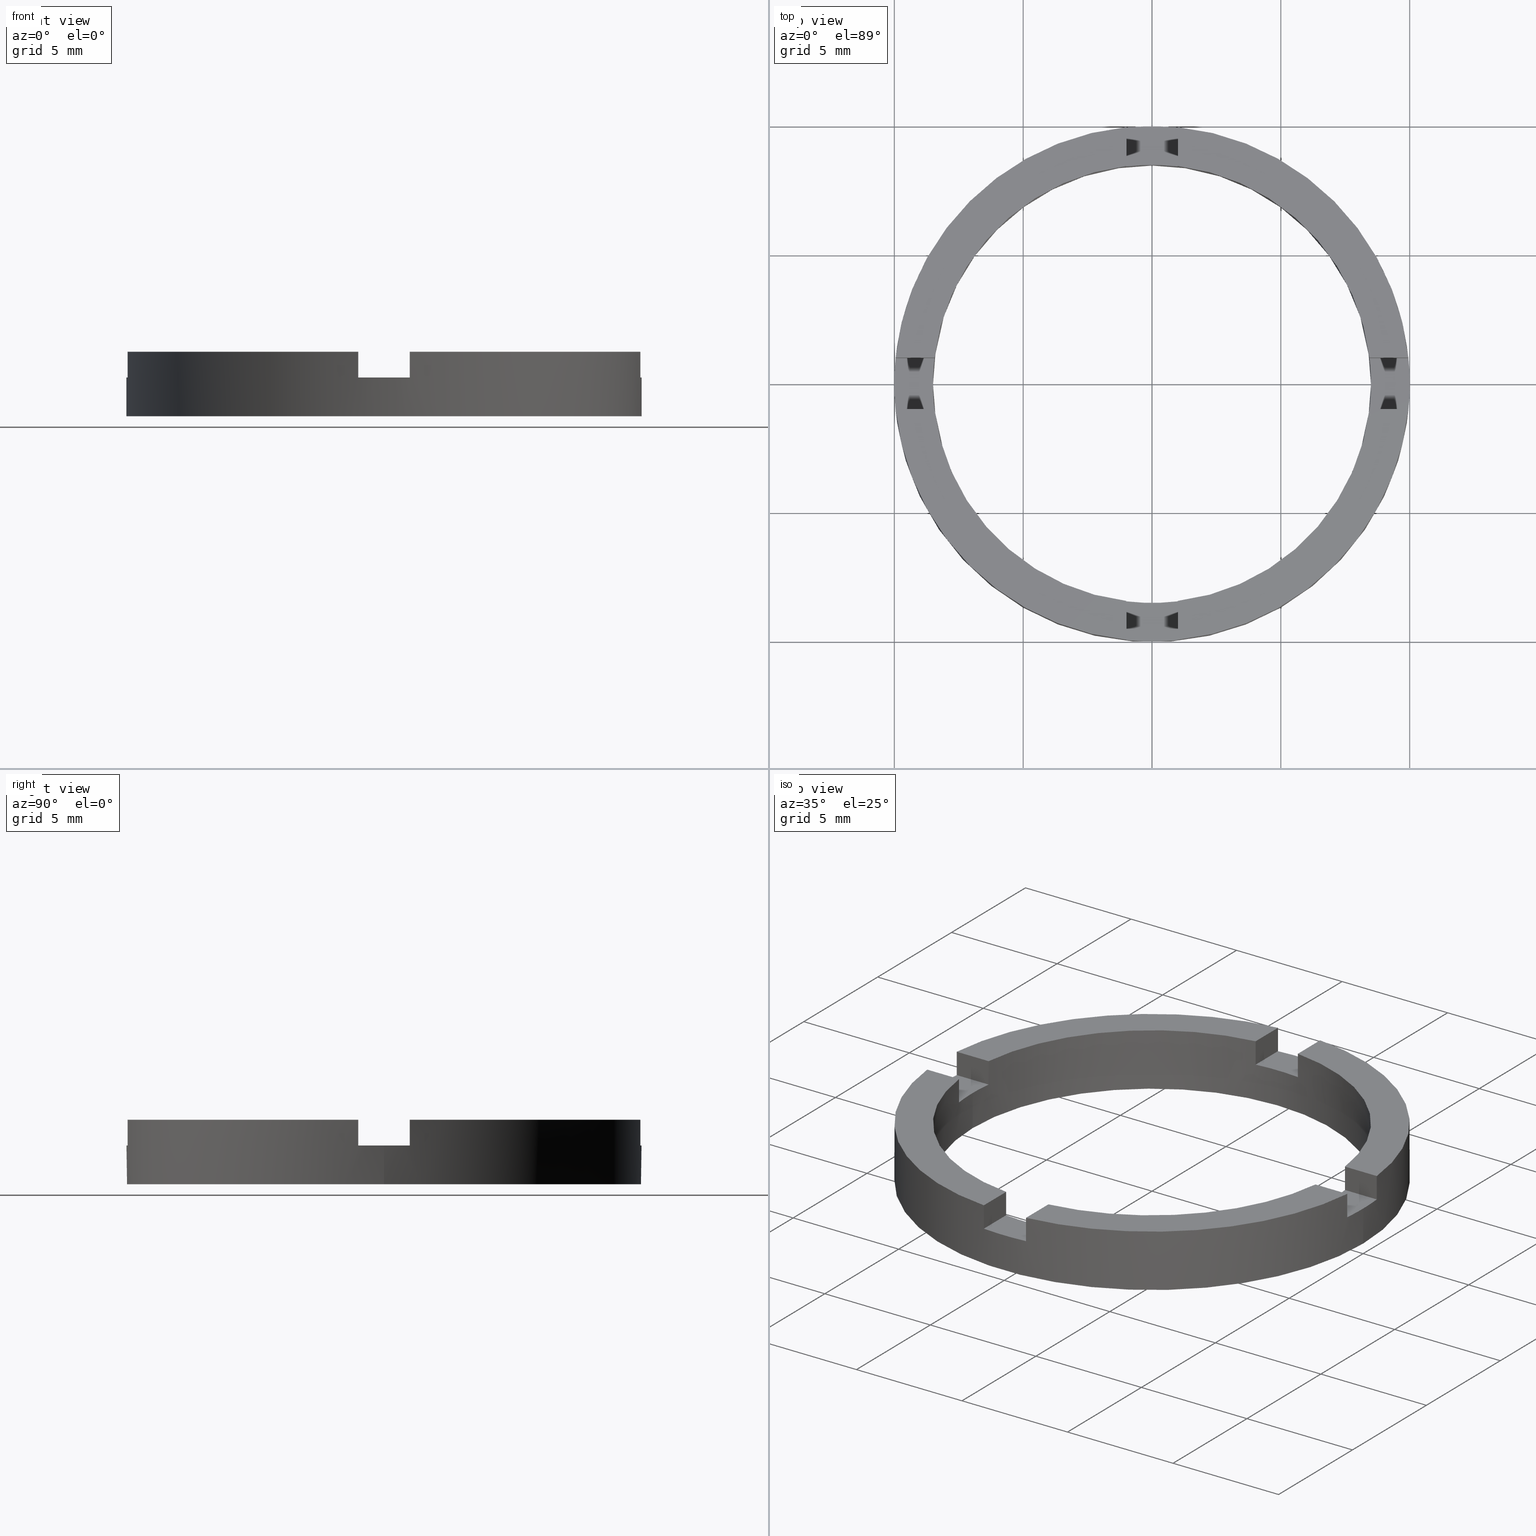
[diagram: canonical four-view strip — front | top / right | iso, engineering-drawing reading convention]
A machine part, canonical four-view strip (front | top / right | iso — engineering-drawing reading convention). The complete STEP part file that produces these views, byte-faithful:
ISO-10303-21;
HEADER;
FILE_DESCRIPTION (( 'STEP AP203' ),
    '1' );
FILE_NAME ('514048.step',
    '2024-12-26T02:32:35',
    ( 'MSI' ),
    ( '' ),
    'SwSTEP 2.0',
    'SolidWorks 2020',
    '' );
FILE_SCHEMA (( 'CONFIG_CONTROL_DESIGN' ));
ENDSEC;

DATA;
#1 = ORIENTED_EDGE ( 'NONE', *, *, #573, .T. ) ;
#2 = ORIENTED_EDGE ( 'NONE', *, *, #240, .F. ) ;
#3 = ORIENTED_EDGE ( 'NONE', *, *, #167, .T. ) ;
#4 = CARTESIAN_POINT ( 'NONE',  ( -9.949874371066195877, 1.000000000000036193, 1.500000000000000000 ) ) ;
#5 = ORIENTED_EDGE ( 'NONE', *, *, #281, .T. ) ;
#6 = CARTESIAN_POINT ( 'NONE',  ( 3.751339516799841397E-15, 0.9999999999999988898, 1.500000000000000000 ) ) ;
#7 = ORIENTED_EDGE ( 'NONE', *, *, #631, .F. ) ;
#8 = ORIENTED_EDGE ( 'NONE', *, *, #330, .T. ) ;
#9 = CARTESIAN_POINT ( 'NONE',  ( 1.000000000000001332, -8.440971508067066864, 2.500000000000000000 ) ) ;
#10 = VERTEX_POINT ( 'NONE', #237 ) ;
#11 = ORIENTED_EDGE ( 'NONE', *, *, #774, .F. ) ;
#12 = ADVANCED_FACE ( 'NONE', ( #147 ), #344, .T. ) ;
#13 = VERTEX_POINT ( 'NONE', #334 ) ;
#14 = ORIENTED_EDGE ( 'NONE', *, *, #306, .T. ) ;
#15 = DIRECTION ( 'NONE',  ( -0.000000000000000000, -0.000000000000000000, 1.000000000000000000 ) ) ;
#16 = ORIENTED_EDGE ( 'NONE', *, *, #313, .F. ) ;
#17 = VERTEX_POINT ( 'NONE', #593 ) ;
#18 = DIRECTION ( 'NONE',  ( 1.000000000000000000, 0.000000000000000000, 0.000000000000000000 ) ) ;
#19 = ORIENTED_EDGE ( 'NONE', *, *, #385, .T. ) ;
#20 = ORIENTED_EDGE ( 'NONE', *, *, #279, .F. ) ;
#21 = DIRECTION ( 'NONE',  ( 1.000000000000000000, -3.729655473350134464E-15, 0.000000000000000000 ) ) ;
#22 = EDGE_LOOP ( 'NONE', ( #775, #647, #259, #397 ) ) ;
#23 = VERTEX_POINT ( 'NONE', #503 ) ;
#24 = AXIS2_PLACEMENT_3D ( 'NONE', #217, #153, #677 ) ;
#25 = EDGE_LOOP ( 'NONE', ( #182, #714, #525, #529 ) ) ;
#26 = VERTEX_POINT ( 'NONE', #732 ) ;
#27 = ADVANCED_FACE ( 'NONE', ( #163 ), #737, .T. ) ;
#28 = ORIENTED_EDGE ( 'NONE', *, *, #465, .T. ) ;
#29 = EDGE_LOOP ( 'NONE', ( #284, #402 ) ) ;
#30 = VERTEX_POINT ( 'NONE', #4 ) ;
#31 = ORIENTED_EDGE ( 'NONE', *, *, #103, .T. ) ;
#32 = CARTESIAN_POINT ( 'NONE',  ( -8.440971508067070417, -0.9999999999999696909, 1.500000000000000000 ) ) ;
#33 = CARTESIAN_POINT ( 'NONE',  ( -0.9999999999999986677, -8.440971508067066864, 1.500000000000000000 ) ) ;
#34 =( LENGTH_UNIT ( ) NAMED_UNIT ( * ) SI_UNIT ( .MILLI., .METRE. ) );
#35 = AXIS2_PLACEMENT_3D ( 'NONE', #664, #601, #311 ) ;
#36 = DIRECTION ( 'NONE',  ( -0.000000000000000000, 0.000000000000000000, 1.000000000000000000 ) ) ;
#37 = EDGE_CURVE ( 'NONE', #282, #461, #416, .T. ) ;
#38 = CARTESIAN_POINT ( 'NONE',  ( -8.440971508067063311, 1.000000000000030642, 2.500000000000000000 ) ) ;
#39 = APPROVAL_ROLE ( '' ) ;
#40 = DIRECTION ( 'NONE',  ( -0.000000000000000000, -0.000000000000000000, 1.000000000000000000 ) ) ;
#41 = DIRECTION ( 'NONE',  ( 0.000000000000000000, 0.000000000000000000, -1.000000000000000000 ) ) ;
#42 = DIRECTION ( 'NONE',  ( 0.000000000000000000, 1.000000000000000000, -0.000000000000000000 ) ) ;
#43 = CARTESIAN_POINT ( 'NONE',  ( 0.000000000000000000, 0.000000000000000000, 0.000000000000000000 ) ) ;
#44 = CARTESIAN_POINT ( 'NONE',  ( 9.949874371066195877, -1.000000000000038192, 1.500000000000000000 ) ) ;
#45 = AXIS2_PLACEMENT_3D ( 'NONE', #99, #741, #599 ) ;
#46 = ADVANCED_FACE ( 'NONE', ( #145 ), #676, .T. ) ;
#47 = DIRECTION ( 'NONE',  ( -0.000000000000000000, 0.000000000000000000, 1.000000000000000000 ) ) ;
#48 = CARTESIAN_POINT ( 'NONE',  ( -3.729655473350139197E-15, -1.000000000000001110, 1.500000000000000000 ) ) ;
#49 = CARTESIAN_POINT ( 'NONE',  ( -0.9999999999999986677, 0.000000000000000000, 1.500000000000000000 ) ) ;
#50 = CARTESIAN_POINT ( 'NONE',  ( 0.000000000000000000, 0.000000000000000000, 2.500000000000000000 ) ) ;
#51 = CC_DESIGN_SECURITY_CLASSIFICATION ( #630, ( #513 ) ) ;
#52 = CARTESIAN_POINT ( 'NONE',  ( -8.500000000000000000, 0.000000000000000000, 2.500000000000000000 ) ) ;
#53 = AXIS2_PLACEMENT_3D ( 'NONE', #104, #36, #437 ) ;
#54 = EDGE_CURVE ( 'NONE', #30, #185, #392, .T. ) ;
#55 = ADVANCED_FACE ( 'NONE', ( #113 ), #241, .T. ) ;
#56 = PLANE ( 'NONE',  #510 ) ;
#57 = EDGE_CURVE ( 'NONE', #23, #10, #432, .T. ) ;
#58 = DIRECTION ( 'NONE',  ( -1.000000000000000000, 0.000000000000000000, 0.000000000000000000 ) ) ;
#59 = EDGE_CURVE ( 'NONE', #23, #487, #641, .T. ) ;
#60 = DIRECTION ( 'NONE',  ( -0.000000000000000000, -0.000000000000000000, -1.000000000000000000 ) ) ;
#61 = CARTESIAN_POINT ( 'NONE',  ( 0.000000000000000000, 0.000000000000000000, 0.000000000000000000 ) ) ;
#62 = AXIS2_PLACEMENT_3D ( 'NONE', #202, #751, #508 ) ;
#63 = DIRECTION ( 'NONE',  ( 0.000000000000000000, 1.000000000000000000, -0.000000000000000000 ) ) ;
#64 = AXIS2_PLACEMENT_3D ( 'NONE', #455, #761, #617 ) ;
#65 = CC_DESIGN_DATE_AND_TIME_ASSIGNMENT ( #391, #767, ( #457 ) ) ;
#66 = CARTESIAN_POINT ( 'NONE',  ( -3.729655473350139197E-15, -1.000000000000001110, 2.500000000000000000 ) ) ;
#67 = CARTESIAN_POINT ( 'NONE',  ( 0.000000000000000000, 0.000000000000000000, 1.500000000000000000 ) ) ;
#68 = PERSON_AND_ORGANIZATION_ROLE ( 'design_owner' ) ;
#69 =( NAMED_UNIT ( * ) PLANE_ANGLE_UNIT ( ) SI_UNIT ( $, .RADIAN. ) );
#70 = PLANE ( 'NONE',  #95 ) ;
#71 = CARTESIAN_POINT ( 'NONE',  ( 8.440971508067063311, -1.000000000000032641, 1.500000000000000000 ) ) ;
#72 = CARTESIAN_POINT ( 'NONE',  ( -10.00000000000000000, 0.000000000000000000, 0.000000000000000000 ) ) ;
#73 = EDGE_CURVE ( 'NONE', #17, #483, #655, .T. ) ;
#74 = CARTESIAN_POINT ( 'NONE',  ( 1.000000000000001332, -8.440971508067066864, 1.500000000000000000 ) ) ;
#75 = DIRECTION ( 'NONE',  ( -0.000000000000000000, -0.000000000000000000, 1.000000000000000000 ) ) ;
#76 = PLANE ( 'NONE',  #24 ) ;
#77 = APPLICATION_CONTEXT ( 'configuration controlled 3d designs of mechanical parts and assemblies' ) ;
#78 = ORIENTED_EDGE ( 'NONE', *, *, #73, .T. ) ;
#79 = EDGE_CURVE ( 'NONE', #642, #17, #690, .T. ) ;
#80 = CARTESIAN_POINT ( 'NONE',  ( 10.00000000000000000, 1.224646799147353256E-15, 0.000000000000000000 ) ) ;
#81 = MANIFOLD_SOLID_BREP ( '�г�-����1', #249 ) ;
#82 = CARTESIAN_POINT ( 'NONE',  ( 10.00000000000000000, 1.224646799147353256E-15, 2.500000000000000000 ) ) ;
#83 = DIRECTION ( 'NONE',  ( 1.000000000000000000, 0.000000000000000000, -0.000000000000000000 ) ) ;
#84 = PLANE ( 'NONE',  #348 ) ;
#85 = ADVANCED_FACE ( 'NONE', ( #418 ), #84, .F. ) ;
#86 = CARTESIAN_POINT ( 'NONE',  ( 10.00000000000000000, 1.224646799147353256E-15, 1.500000000000000000 ) ) ;
#87 = AXIS2_PLACEMENT_3D ( 'NONE', #609, #144, #253 ) ;
#88 = ADVANCED_FACE ( 'NONE', ( #679 ), #70, .T. ) ;
#89 = EDGE_LOOP ( 'NONE', ( #626, #177, #720, #98 ) ) ;
#90 = APPROVAL ( #292, 'δָ��' ) ;
#91 = ORIENTED_EDGE ( 'NONE', *, *, #500, .F. ) ;
#92 = PERSON ( 'δָ��', 'δָ��', 'δָ��', ('δָ��'), ('δָ��'), ('δָ��') ) ;
#93 = CARTESIAN_POINT ( 'NONE',  ( 0.000000000000000000, 0.000000000000000000, 2.500000000000000000 ) ) ;
#94 = ORIENTED_EDGE ( 'NONE', *, *, #700, .F. ) ;
#95 = AXIS2_PLACEMENT_3D ( 'NONE', #581, #294, #492 ) ;
#96 = ORIENTED_EDGE ( 'NONE', *, *, #633, .F. ) ;
#97 = ORIENTED_EDGE ( 'NONE', *, *, #725, .T. ) ;
#98 = ORIENTED_EDGE ( 'NONE', *, *, #774, .T. ) ;
#99 = CARTESIAN_POINT ( 'NONE',  ( 0.000000000000000000, 0.000000000000000000, 1.500000000000000000 ) ) ;
#100 = EDGE_CURVE ( 'NONE', #621, #387, #384, .T. ) ;
#101 = CARTESIAN_POINT ( 'NONE',  ( 8.440971508067070417, 0.9999999999999672484, 1.500000000000000000 ) ) ;
#102 = AXIS2_PLACEMENT_3D ( 'NONE', #238, #411, #557 ) ;
#103 = EDGE_CURVE ( 'NONE', #173, #667, #400, .T. ) ;
#104 = CARTESIAN_POINT ( 'NONE',  ( 0.000000000000000000, 0.000000000000000000, 1.500000000000000000 ) ) ;
#105 = PERSON_AND_ORGANIZATION ( #92, #378 ) ;
#106 = CARTESIAN_POINT ( 'NONE',  ( -3.729655473350139197E-15, -1.000000000000001110, 1.500000000000000000 ) ) ;
#107 = ORIENTED_EDGE ( 'NONE', *, *, #507, .T. ) ;
#108 = VERTEX_POINT ( 'NONE', #371 ) ;
#109 = COORDINATED_UNIVERSAL_TIME_OFFSET ( 8, 0, .AHEAD. ) ;
#110 = AXIS2_PLACEMENT_3D ( 'NONE', #511, #568, #644 ) ;
#111 = DIRECTION ( 'NONE',  ( 1.000000000000000000, -3.729655473350134464E-15, 0.000000000000000000 ) ) ;
#112 = CALENDAR_DATE ( 2024, 26, 12 ) ;
#113 = FACE_OUTER_BOUND ( 'NONE', #89, .T. ) ;
#114 = EDGE_CURVE ( 'NONE', #742, #122, #161, .T. ) ;
#115 = ORIENTED_EDGE ( 'NONE', *, *, #608, .F. ) ;
#116 = VECTOR ( 'NONE', #40, 1000.000000000000000 ) ;
#117 = ORIENTED_EDGE ( 'NONE', *, *, #281, .F. ) ;
#118 = VECTOR ( 'NONE', #324, 1000.000000000000000 ) ;
#119 = DIRECTION ( 'NONE',  ( 0.000000000000000000, 0.000000000000000000, 1.000000000000000000 ) ) ;
#120 = PERSON_AND_ORGANIZATION ( #92, #378 ) ;
#121 = CARTESIAN_POINT ( 'NONE',  ( 9.949874371066195877, -1.000000000000038192, 2.500000000000000000 ) ) ;
#122 = VERTEX_POINT ( 'NONE', #399 ) ;
#123 =( NAMED_UNIT ( * ) SI_UNIT ( $, .STERADIAN. ) SOLID_ANGLE_UNIT ( ) );
#124 = CIRCLE ( 'NONE', #441, 8.500000000000000000 ) ;
#125 = CARTESIAN_POINT ( 'NONE',  ( 3.751339516799841397E-15, 0.9999999999999988898, 1.500000000000000000 ) ) ;
#126 = ORIENTED_EDGE ( 'NONE', *, *, #236, .T. ) ;
#127 = FACE_OUTER_BOUND ( 'NONE', #132, .T. ) ;
#128 = ORIENTED_EDGE ( 'NONE', *, *, #57, .T. ) ;
#129 = COORDINATED_UNIVERSAL_TIME_OFFSET ( 8, 0, .AHEAD. ) ;
#130 = CIRCLE ( 'NONE', #506, 8.500000000000000000 ) ;
#131 = DIRECTION ( 'NONE',  ( -0.000000000000000000, 0.000000000000000000, 1.000000000000000000 ) ) ;
#132 = EDGE_LOOP ( 'NONE', ( #520, #639, #523, #265, #747, #19 ) ) ;
#133 = DIRECTION ( 'NONE',  ( 1.000000000000000000, 0.000000000000000000, 0.000000000000000000 ) ) ;
#134 = VECTOR ( 'NONE', #419, 1000.000000000000000 ) ;
#135 = VERTEX_POINT ( 'NONE', #620 ) ;
#136 = CALENDAR_DATE ( 2024, 26, 12 ) ;
#137 = CIRCLE ( 'NONE', #87, 8.500000000000000000 ) ;
#138 = AXIS2_PLACEMENT_3D ( 'NONE', #50, #296, #586 ) ;
#139 = VECTOR ( 'NONE', #514, 1000.000000000000000 ) ;
#140 = ORIENTED_EDGE ( 'NONE', *, *, #469, .F. ) ;
#141 = PERSON_AND_ORGANIZATION ( #92, #378 ) ;
#142 = LINE ( 'NONE', #623, #405 ) ;
#143 = CALENDAR_DATE ( 2024, 26, 12 ) ;
#144 = DIRECTION ( 'NONE',  ( 0.000000000000000000, 0.000000000000000000, 1.000000000000000000 ) ) ;
#145 = FACE_OUTER_BOUND ( 'NONE', #406, .T. ) ;
#146 = APPROVAL_DATE_TIME ( #363, #90 ) ;
#147 = FACE_OUTER_BOUND ( 'NONE', #549, .T. ) ;
#148 = COORDINATED_UNIVERSAL_TIME_OFFSET ( 8, 0, .AHEAD. ) ;
#149 = DATE_AND_TIME ( #112, #634 ) ;
#150 = ADVANCED_FACE ( 'NONE', ( #151 ), #359, .T. ) ;
#151 = FACE_OUTER_BOUND ( 'NONE', #369, .T. ) ;
#152 = AXIS2_PLACEMENT_3D ( 'NONE', #610, #466, #521 ) ;
#153 = DIRECTION ( 'NONE',  ( 1.000000000000000000, 0.000000000000000000, 0.000000000000000000 ) ) ;
#154 = APPROVAL_STATUS ( 'not_yet_approved' ) ;
#155 = FACE_OUTER_BOUND ( 'NONE', #25, .T. ) ;
#156 = ORIENTED_EDGE ( 'NONE', *, *, #708, .T. ) ;
#157 = LINE ( 'NONE', #674, #434 ) ;
#158 = VERTEX_POINT ( 'NONE', #32 ) ;
#159 = LINE ( 'NONE', #590, #662 ) ;
#160 = DIRECTION ( 'NONE',  ( -0.000000000000000000, 0.000000000000000000, 1.000000000000000000 ) ) ;
#161 = LINE ( 'NONE', #535, #425 ) ;
#162 = CARTESIAN_POINT ( 'NONE',  ( 0.000000000000000000, 0.000000000000000000, 2.500000000000000000 ) ) ;
#163 = FACE_OUTER_BOUND ( 'NONE', #624, .T. ) ;
#164 = CIRCLE ( 'NONE', #651, 10.00000000000000000 ) ;
#165 = CIRCLE ( 'NONE', #64, 8.500000000000000000 ) ;
#166 = AXIS2_PLACEMENT_3D ( 'NONE', #235, #331, #41 ) ;
#167 = EDGE_CURVE ( 'NONE', #10, #135, #420, .T. ) ;
#168 = CIRCLE ( 'NONE', #561, 8.500000000000000000 ) ;
#169 = CIRCLE ( 'NONE', #628, 8.500000000000000000 ) ;
#170 = VECTOR ( 'NONE', #607, 1000.000000000000000 ) ;
#171 = FACE_OUTER_BOUND ( 'NONE', #245, .T. ) ;
#172 = VECTOR ( 'NONE', #63, 1000.000000000000000 ) ;
#173 = VERTEX_POINT ( 'NONE', #764 ) ;
#174 = FACE_BOUND ( 'NONE', #430, .T. ) ;
#175 = AXIS2_PLACEMENT_3D ( 'NONE', #242, #304, #600 ) ;
#176 = DIRECTION ( 'NONE',  ( 1.000000000000000000, 4.440892098500626162E-15, 0.000000000000000000 ) ) ;
#177 = ORIENTED_EDGE ( 'NONE', *, *, #573, .F. ) ;
#178 = LINE ( 'NONE', #33, #477 ) ;
#179 = ORIENTED_EDGE ( 'NONE', *, *, #633, .T. ) ;
#180 = LINE ( 'NONE', #723, #694 ) ;
#181 = DIRECTION ( 'NONE',  ( 1.000000000000000000, 0.000000000000000000, -0.000000000000000000 ) ) ;
#182 = ORIENTED_EDGE ( 'NONE', *, *, #330, .F. ) ;
#183 = CIRCLE ( 'NONE', #602, 8.500000000000000000 ) ;
#184 = VECTOR ( 'NONE', #111, 1000.000000000000000 ) ;
#185 = VERTEX_POINT ( 'NONE', #275 ) ;
#186 = FACE_OUTER_BOUND ( 'NONE', #280, .T. ) ;
#187 = VECTOR ( 'NONE', #295, 1000.000000000000000 ) ;
#188 = CARTESIAN_POINT ( 'NONE',  ( 3.751339516799841397E-15, 0.9999999999999988898, 2.500000000000000000 ) ) ;
#189 = CIRCLE ( 'NONE', #297, 8.500000000000000000 ) ;
#190 = LINE ( 'NONE', #343, #467 ) ;
#191 = PLANE ( 'NONE',  #35 ) ;
#192 = VECTOR ( 'NONE', #603, 1000.000000000000000 ) ;
#193 = FACE_OUTER_BOUND ( 'NONE', #273, .T. ) ;
#194 = PRODUCT ( '514048', '514048', '', ( #278 ) ) ;
#195 = CYLINDRICAL_SURFACE ( 'NONE', #498, 8.500000000000000000 ) ;
#196 = DESIGN_CONTEXT ( 'detailed design', #696, 'design' ) ;
#197 = LINE ( 'NONE', #106, #736 ) ;
#198 = CC_DESIGN_DATE_AND_TIME_ASSIGNMENT ( #395, #618, ( #630 ) ) ;
#199 = CARTESIAN_POINT ( 'NONE',  ( 0.000000000000000000, 0.000000000000000000, 1.500000000000000000 ) ) ;
#200 = LINE ( 'NONE', #71, #474 ) ;
#201 = VERTEX_POINT ( 'NONE', #604 ) ;
#202 = CARTESIAN_POINT ( 'NONE',  ( 0.000000000000000000, 0.000000000000000000, 2.500000000000000000 ) ) ;
#203 = AXIS2_PLACEMENT_3D ( 'NONE', #208, #131, #18 ) ;
#204 = ORIENTED_EDGE ( 'NONE', *, *, #59, .F. ) ;
#205 = EDGE_CURVE ( 'NONE', #274, #285, #164, .T. ) ;
#206 = ADVANCED_FACE ( 'NONE', ( #127 ), #650, .T. ) ;
#207 = ORIENTED_EDGE ( 'NONE', *, *, #289, .F. ) ;
#208 = CARTESIAN_POINT ( 'NONE',  ( 0.000000000000000000, 0.000000000000000000, 1.500000000000000000 ) ) ;
#209 = EDGE_LOOP ( 'NONE', ( #636, #251, #750, #394, #211, #28 ) ) ;
#210 = CARTESIAN_POINT ( 'NONE',  ( 9.949874371066202983, 0.9999999999999615863, 2.500000000000000000 ) ) ;
#211 = ORIENTED_EDGE ( 'NONE', *, *, #752, .T. ) ;
#212 = DIRECTION ( 'NONE',  ( -0.000000000000000000, -0.000000000000000000, -1.000000000000000000 ) ) ;
#213 = ORIENTED_EDGE ( 'NONE', *, *, #700, .T. ) ;
#214 = ORIENTED_EDGE ( 'NONE', *, *, #746, .F. ) ;
#215 = EDGE_CURVE ( 'NONE', #777, #201, #643, .T. ) ;
#216 = ORIENTED_EDGE ( 'NONE', *, *, #782, .T. ) ;
#217 = CARTESIAN_POINT ( 'NONE',  ( 1.000000000000001332, 0.000000000000000000, 1.500000000000000000 ) ) ;
#218 = PERSON_AND_ORGANIZATION_ROLE ( 'creator' ) ;
#219 = ORIENTED_EDGE ( 'NONE', *, *, #100, .T. ) ;
#220 = CARTESIAN_POINT ( 'NONE',  ( 0.000000000000000000, 0.000000000000000000, 2.500000000000000000 ) ) ;
#221 = ORIENTED_EDGE ( 'NONE', *, *, #306, .F. ) ;
#222 = CARTESIAN_POINT ( 'NONE',  ( 0.000000000000000000, 0.000000000000000000, 1.500000000000000000 ) ) ;
#223 = CARTESIAN_POINT ( 'NONE',  ( -0.9999999999999986677, 9.949874371066199430, 1.500000000000000000 ) ) ;
#224 = DIRECTION ( 'NONE',  ( 1.000000000000000000, 0.000000000000000000, -0.000000000000000000 ) ) ;
#225 = AXIS2_PLACEMENT_3D ( 'NONE', #314, #212, #58 ) ;
#226 = CARTESIAN_POINT ( 'NONE',  ( -9.949874371066202983, -0.9999999999999640288, 1.500000000000000000 ) ) ;
#227 = AXIS2_PLACEMENT_3D ( 'NONE', #67, #47, #276 ) ;
#228 = DIRECTION ( 'NONE',  ( -0.000000000000000000, -0.000000000000000000, 1.000000000000000000 ) ) ;
#229 = CARTESIAN_POINT ( 'NONE',  ( 0.000000000000000000, 0.000000000000000000, 0.000000000000000000 ) ) ;
#230 = DIRECTION ( 'NONE',  ( 1.000000000000000000, 0.000000000000000000, 0.000000000000000000 ) ) ;
#231 = CARTESIAN_POINT ( 'NONE',  ( -9.949874371066195877, 1.000000000000036193, 2.500000000000000000 ) ) ;
#232 = DIRECTION ( 'NONE',  ( -0.000000000000000000, -0.000000000000000000, -1.000000000000000000 ) ) ;
#233 = PERSON_AND_ORGANIZATION_ROLE ( 'creator' ) ;
#234 = ADVANCED_FACE ( 'NONE', ( #155 ), #191, .T. ) ;
#235 = CARTESIAN_POINT ( 'NONE',  ( 1.000000000000001332, 0.000000000000000000, 1.500000000000000000 ) ) ;
#236 = EDGE_CURVE ( 'NONE', #135, #487, #130, .T. ) ;
#237 = CARTESIAN_POINT ( 'NONE',  ( 1.000000000000001332, -9.949874371066199430, 1.500000000000000000 ) ) ;
#238 = CARTESIAN_POINT ( 'NONE',  ( 0.000000000000000000, 0.000000000000000000, 2.500000000000000000 ) ) ;
#239 = EDGE_CURVE ( 'NONE', #748, #689, #157, .T. ) ;
#240 = EDGE_CURVE ( 'NONE', #461, #173, #423, .T. ) ;
#241 = PLANE ( 'NONE',  #453 ) ;
#242 = CARTESIAN_POINT ( 'NONE',  ( 0.000000000000000000, 0.000000000000000000, 2.500000000000000000 ) ) ;
#243 = CC_DESIGN_APPROVAL ( #401, ( #457 ) ) ;
#244 = DIRECTION ( 'NONE',  ( 0.000000000000000000, 0.000000000000000000, 1.000000000000000000 ) ) ;
#245 = EDGE_LOOP ( 'NONE', ( #204, #128, #3, #126 ) ) ;
#246 = ORIENTED_EDGE ( 'NONE', *, *, #570, .T. ) ;
#247 = EDGE_LOOP ( 'NONE', ( #368, #745, #550, #542 ) ) ;
#248 = VERTEX_POINT ( 'NONE', #524 ) ;
#249 = CLOSED_SHELL ( 'NONE', ( #565, #46, #234, #55, #12, #755, #309, #716, #611, #778, #517, #429, #150, #85, #206, #27, #446, #88, #763, #252, #326 ) ) ;
#250 = EDGE_LOOP ( 'NONE', ( #94, #342, #531, #179 ) ) ;
#251 = ORIENTED_EDGE ( 'NONE', *, *, #279, .T. ) ;
#252 = ADVANCED_FACE ( 'NONE', ( #685 ), #776, .F. ) ;
#253 = DIRECTION ( 'NONE',  ( 1.000000000000000000, 0.000000000000000000, 0.000000000000000000 ) ) ;
#254 = ORIENTED_EDGE ( 'NONE', *, *, #54, .T. ) ;
#255 = CARTESIAN_POINT ( 'NONE',  ( 8.440971508067063311, -1.000000000000032641, 1.500000000000000000 ) ) ;
#256 = ORIENTED_EDGE ( 'NONE', *, *, #426, .T. ) ;
#257 = ORIENTED_EDGE ( 'NONE', *, *, #354, .F. ) ;
#258 = CC_DESIGN_APPROVAL ( #300, ( #630 ) ) ;
#259 = ORIENTED_EDGE ( 'NONE', *, *, #167, .F. ) ;
#260 = CARTESIAN_POINT ( 'NONE',  ( 1.000000000000001332, 9.949874371066199430, 1.500000000000000000 ) ) ;
#261 = ORIENTED_EDGE ( 'NONE', *, *, #598, .F. ) ;
#262 = DIRECTION ( 'NONE',  ( 0.000000000000000000, 0.000000000000000000, -1.000000000000000000 ) ) ;
#263 = VERTEX_POINT ( 'NONE', #86 ) ;
#264 = ORIENTED_EDGE ( 'NONE', *, *, #719, .F. ) ;
#265 = ORIENTED_EDGE ( 'NONE', *, *, #79, .T. ) ;
#266 = DIRECTION ( 'NONE',  ( 1.000000000000000000, 0.000000000000000000, 0.000000000000000000 ) ) ;
#267 = DIRECTION ( 'NONE',  ( 1.000000000000000000, -1.509903313490213211E-14, 0.000000000000000000 ) ) ;
#268 = VERTEX_POINT ( 'NONE', #231 ) ;
#269 = PERSON_AND_ORGANIZATION_ROLE ( 'classification_officer' ) ;
#270 = DIRECTION ( 'NONE',  ( 1.000000000000000000, 0.000000000000000000, 0.000000000000000000 ) ) ;
#271 = ORIENTED_EDGE ( 'NONE', *, *, #385, .F. ) ;
#272 = CARTESIAN_POINT ( 'NONE',  ( 1.000000000000001332, 0.000000000000000000, 2.500000000000000000 ) ) ;
#273 = EDGE_LOOP ( 'NONE', ( #214, #207, #661, #653 ) ) ;
#274 = VERTEX_POINT ( 'NONE', #80 ) ;
#275 = CARTESIAN_POINT ( 'NONE',  ( -8.440971508067063311, 1.000000000000030642, 1.500000000000000000 ) ) ;
#276 = DIRECTION ( 'NONE',  ( 1.000000000000000000, 0.000000000000000000, 0.000000000000000000 ) ) ;
#277 = ORIENTED_EDGE ( 'NONE', *, *, #614, .F. ) ;
#278 = MECHANICAL_CONTEXT ( 'NONE', #77, 'mechanical' ) ;
#279 = EDGE_CURVE ( 'NONE', #30, #777, #403, .T. ) ;
#280 = EDGE_LOOP ( 'NONE', ( #454, #91, #288, #1, #2, #286, #560, #8, #115, #779, #14, #518 ) ) ;
#281 = EDGE_CURVE ( 'NONE', #158, #522, #379, .T. ) ;
#282 = VERTEX_POINT ( 'NONE', #545 ) ;
#283 = CARTESIAN_POINT ( 'NONE',  ( -8.440971508067070417, -0.9999999999999696909, 1.500000000000000000 ) ) ;
#284 = ORIENTED_EDGE ( 'NONE', *, *, #725, .F. ) ;
#285 = VERTEX_POINT ( 'NONE', #72 ) ;
#286 = ORIENTED_EDGE ( 'NONE', *, *, #37, .F. ) ;
#287 = DIRECTION ( 'NONE',  ( 1.000000000000000000, -3.729655473350134464E-15, 0.000000000000000000 ) ) ;
#288 = ORIENTED_EDGE ( 'NONE', *, *, #313, .T. ) ;
#289 = EDGE_CURVE ( 'NONE', #23, #459, #159, .T. ) ;
#290 = CARTESIAN_POINT ( 'NONE',  ( 0.000000000000000000, 0.000000000000000000, 1.500000000000000000 ) ) ;
#291 = CARTESIAN_POINT ( 'NONE',  ( -0.9999999999999986677, 8.440971508067066864, 1.500000000000000000 ) ) ;
#292 = APPROVAL_STATUS ( 'not_yet_approved' ) ;
#293 = EDGE_CURVE ( 'NONE', #13, #632, #396, .T. ) ;
#294 = DIRECTION ( 'NONE',  ( -0.000000000000000000, 0.000000000000000000, 1.000000000000000000 ) ) ;
#295 = DIRECTION ( 'NONE',  ( -0.000000000000000000, -0.000000000000000000, 1.000000000000000000 ) ) ;
#296 = DIRECTION ( 'NONE',  ( -0.000000000000000000, -0.000000000000000000, -1.000000000000000000 ) ) ;
#297 = AXIS2_PLACEMENT_3D ( 'NONE', #591, #380, #588 ) ;
#298 = DIRECTION ( 'NONE',  ( -0.000000000000000000, -0.000000000000000000, 1.000000000000000000 ) ) ;
#299 = DIRECTION ( 'NONE',  ( -0.000000000000000000, 0.000000000000000000, 1.000000000000000000 ) ) ;
#300 = APPROVAL ( #366, 'δָ��' ) ;
#301 = DIRECTION ( 'NONE',  ( 0.000000000000000000, -0.000000000000000000, -1.000000000000000000 ) ) ;
#302 = EDGE_CURVE ( 'NONE', #387, #527, #428, .T. ) ;
#303 = AXIS2_PLACEMENT_3D ( 'NONE', #43, #481, #548 ) ;
#304 = DIRECTION ( 'NONE',  ( 0.000000000000000000, 0.000000000000000000, 1.000000000000000000 ) ) ;
#305 = DIRECTION ( 'NONE',  ( -0.000000000000000000, -0.000000000000000000, 1.000000000000000000 ) ) ;
#306 = EDGE_CURVE ( 'NONE', #657, #341, #660, .T. ) ;
#307 = PRODUCT_DEFINITION_SHAPE ( 'NONE', 'NONE',  #457 ) ;
#308 = AXIS2_PLACEMENT_3D ( 'NONE', #290, #160, #494 ) ;
#309 = ADVANCED_FACE ( 'NONE', ( #386 ), #389, .T. ) ;
#310 = PLANE ( 'NONE',  #616 ) ;
#311 = DIRECTION ( 'NONE',  ( 1.000000000000000000, 0.000000000000000000, -0.000000000000000000 ) ) ;
#312 = DIRECTION ( 'NONE',  ( -0.000000000000000000, -0.000000000000000000, 1.000000000000000000 ) ) ;
#313 = EDGE_CURVE ( 'NONE', #621, #26, #142, .T. ) ;
#314 = CARTESIAN_POINT ( 'NONE',  ( 0.000000000000000000, 0.000000000000000000, 2.500000000000000000 ) ) ;
#315 = AXIS2_PLACEMENT_3D ( 'NONE', #625, #488, #773 ) ;
#316 = CARTESIAN_POINT ( 'NONE',  ( 3.751339516799841397E-15, 0.9999999999999988898, 1.500000000000000000 ) ) ;
#317 = DIRECTION ( 'NONE',  ( -0.000000000000000000, -0.000000000000000000, 1.000000000000000000 ) ) ;
#318 = CARTESIAN_POINT ( 'NONE',  ( 0.000000000000000000, 0.000000000000000000, 2.500000000000000000 ) ) ;
#319 = APPROVAL_ROLE ( '' ) ;
#320 = DIRECTION ( 'NONE',  ( 0.000000000000000000, 0.000000000000000000, 1.000000000000000000 ) ) ;
#321 = CARTESIAN_POINT ( 'NONE',  ( 0.000000000000000000, 0.000000000000000000, 2.500000000000000000 ) ) ;
#322 = DIRECTION ( 'NONE',  ( 0.000000000000000000, 0.000000000000000000, 1.000000000000000000 ) ) ;
#323 = AXIS2_PLACEMENT_3D ( 'NONE', #574, #580, #532 ) ;
#324 = DIRECTION ( 'NONE',  ( 0.000000000000000000, 1.000000000000000000, -0.000000000000000000 ) ) ;
#325 = CARTESIAN_POINT ( 'NONE',  ( 0.000000000000000000, 0.000000000000000000, 1.500000000000000000 ) ) ;
#326 = ADVANCED_FACE ( 'NONE', ( #649 ), #552, .T. ) ;
#327 = DIRECTION ( 'NONE',  ( 1.000000000000000000, -3.751339516799845342E-15, 0.000000000000000000 ) ) ;
#328 = PERSON_AND_ORGANIZATION_ROLE ( 'design_supplier' ) ;
#329 = CARTESIAN_POINT ( 'NONE',  ( 0.000000000000000000, 0.000000000000000000, 2.500000000000000000 ) ) ;
#330 = EDGE_CURVE ( 'NONE', #13, #536, #124, .T. ) ;
#331 = DIRECTION ( 'NONE',  ( 1.000000000000000000, 0.000000000000000000, 0.000000000000000000 ) ) ;
#332 = DIRECTION ( 'NONE',  ( 0.000000000000000000, 1.000000000000000000, -0.000000000000000000 ) ) ;
#333 = APPLICATION_PROTOCOL_DEFINITION ( 'international standard', 'config_control_design', 1994, #696 ) ;
#334 = CARTESIAN_POINT ( 'NONE',  ( -0.9999999999999986677, 8.440971508067066864, 2.500000000000000000 ) ) ;
#335 = EDGE_CURVE ( 'NONE', #341, #122, #137, .T. ) ;
#336 = DIRECTION ( 'NONE',  ( 0.000000000000000000, 0.000000000000000000, 1.000000000000000000 ) ) ;
#337 = ORIENTED_EDGE ( 'NONE', *, *, #215, .F. ) ;
#338 = CARTESIAN_POINT ( 'NONE',  ( 0.000000000000000000, 0.000000000000000000, 1.500000000000000000 ) ) ;
#339 = CARTESIAN_POINT ( 'NONE',  ( 0.000000000000000000, 0.000000000000000000, 0.000000000000000000 ) ) ;
#340 = AXIS2_PLACEMENT_3D ( 'NONE', #339, #670, #563 ) ;
#341 = VERTEX_POINT ( 'NONE', #361 ) ;
#342 = ORIENTED_EDGE ( 'NONE', *, *, #426, .F. ) ;
#343 = CARTESIAN_POINT ( 'NONE',  ( -10.00000000000000000, 0.000000000000000000, 2.500000000000000000 ) ) ;
#344 = PLANE ( 'NONE',  #770 ) ;
#345 = DIRECTION ( 'NONE',  ( 1.000000000000000000, 0.000000000000000000, 0.000000000000000000 ) ) ;
#346 = CARTESIAN_POINT ( 'NONE',  ( -8.440971508067063311, 1.000000000000030642, 1.500000000000000000 ) ) ;
#347 = DIRECTION ( 'NONE',  ( 1.000000000000000000, 0.000000000000000000, 0.000000000000000000 ) ) ;
#348 = AXIS2_PLACEMENT_3D ( 'NONE', #48, #710, #287 ) ;
#349 = EDGE_CURVE ( 'NONE', #742, #642, #414, .T. ) ;
#350 = CARTESIAN_POINT ( 'NONE',  ( 0.000000000000000000, 0.000000000000000000, 2.500000000000000000 ) ) ;
#351 =( GEOMETRIC_REPRESENTATION_CONTEXT ( 3 ) GLOBAL_UNCERTAINTY_ASSIGNED_CONTEXT ( ( #476 ) ) GLOBAL_UNIT_ASSIGNED_CONTEXT ( ( #34, #69, #123 ) ) REPRESENTATION_CONTEXT ( 'NONE', 'WORKASPACE' ) );
#352 = ORIENTED_EDGE ( 'NONE', *, *, #577, .T. ) ;
#353 = DIRECTION ( 'NONE',  ( 0.000000000000000000, 0.000000000000000000, 1.000000000000000000 ) ) ;
#354 = EDGE_CURVE ( 'NONE', #201, #495, #666, .T. ) ;
#355 = CARTESIAN_POINT ( 'NONE',  ( -0.9999999999999986677, 0.000000000000000000, 1.500000000000000000 ) ) ;
#356 = ORIENTED_EDGE ( 'NONE', *, *, #302, .F. ) ;
#357 = DIRECTION ( 'NONE',  ( 0.000000000000000000, 0.000000000000000000, 1.000000000000000000 ) ) ;
#358 = DIRECTION ( 'NONE',  ( 1.000000000000000000, 0.000000000000000000, 0.000000000000000000 ) ) ;
#359 = PLANE ( 'NONE',  #594 ) ;
#360 = ORIENTED_EDGE ( 'NONE', *, *, #289, .T. ) ;
#361 = CARTESIAN_POINT ( 'NONE',  ( -8.500000000000000000, 0.000000000000000000, 0.000000000000000000 ) ) ;
#362 = DIRECTION ( 'NONE',  ( 1.000000000000000000, -3.729655473350134464E-15, 0.000000000000000000 ) ) ;
#363 = DATE_AND_TIME ( #373, #413 ) ;
#364 = CARTESIAN_POINT ( 'NONE',  ( 1.000000000000001332, 8.440971508067066864, 1.500000000000000000 ) ) ;
#365 = CARTESIAN_POINT ( 'NONE',  ( 9.949874371066202983, 0.9999999999999615863, 1.500000000000000000 ) ) ;
#366 = APPROVAL_STATUS ( 'not_yet_approved' ) ;
#367 = AXIS2_PLACEMENT_3D ( 'NONE', #325, #578, #479 ) ;
#368 = ORIENTED_EDGE ( 'NONE', *, *, #293, .F. ) ;
#369 = EDGE_LOOP ( 'NONE', ( #264, #16, #219, #404 ) ) ;
#370 = LOCAL_TIME ( 10, 32, 35.00000000000000000, #148 ) ;
#371 = CARTESIAN_POINT ( 'NONE',  ( -0.9999999999999986677, -8.440971508067066864, 2.500000000000000000 ) ) ;
#372 = ORIENTED_EDGE ( 'NONE', *, *, #569, .F. ) ;
#373 = CALENDAR_DATE ( 2024, 26, 12 ) ;
#374 = CC_DESIGN_APPROVAL ( #90, ( #513 ) ) ;
#375 = VECTOR ( 'NONE', #471, 1000.000000000000000 ) ;
#376 = CARTESIAN_POINT ( 'NONE',  ( -0.9999999999999986677, 0.000000000000000000, 2.500000000000000000 ) ) ;
#377 = ORIENTED_EDGE ( 'NONE', *, *, #530, .F. ) ;
#378 = ORGANIZATION ( 'δָ��', 'δָ��', '' ) ;
#379 = LINE ( 'NONE', #283, #687 ) ;
#380 = DIRECTION ( 'NONE',  ( 0.000000000000000000, 0.000000000000000000, 1.000000000000000000 ) ) ;
#381 = ORIENTED_EDGE ( 'NONE', *, *, #608, .T. ) ;
#382 = LINE ( 'NONE', #691, #665 ) ;
#383 = DIRECTION ( 'NONE',  ( -3.751339516799845342E-15, -1.000000000000000000, 0.000000000000000000 ) ) ;
#384 = LINE ( 'NONE', #125, #673 ) ;
#385 = EDGE_CURVE ( 'NONE', #263, #387, #409, .T. ) ;
#386 = FACE_OUTER_BOUND ( 'NONE', #541, .T. ) ;
#387 = VERTEX_POINT ( 'NONE', #365 ) ;
#388 = COORDINATED_UNIVERSAL_TIME_OFFSET ( 8, 0, .AHEAD. ) ;
#389 = CYLINDRICAL_SURFACE ( 'NONE', #138, 10.00000000000000000 ) ;
#390 = ORIENTED_EDGE ( 'NONE', *, *, #79, .F. ) ;
#391 = DATE_AND_TIME ( #143, #410 ) ;
#392 = LINE ( 'NONE', #6, #134 ) ;
#393 = DIRECTION ( 'NONE',  ( 1.000000000000000000, 0.000000000000000000, 0.000000000000000000 ) ) ;
#394 = ORIENTED_EDGE ( 'NONE', *, *, #614, .T. ) ;
#395 = DATE_AND_TIME ( #417, #370 ) ;
#396 = LINE ( 'NONE', #376, #118 ) ;
#397 = ORIENTED_EDGE ( 'NONE', *, *, #598, .T. ) ;
#398 = PERSON_AND_ORGANIZATION ( #92, #378 ) ;
#399 = CARTESIAN_POINT ( 'NONE',  ( 8.500000000000000000, 1.040949779275250140E-15, 0.000000000000000000 ) ) ;
#400 = LINE ( 'NONE', #272, #638 ) ;
#401 = APPROVAL ( #154, 'δָ��' ) ;
#402 = ORIENTED_EDGE ( 'NONE', *, *, #205, .F. ) ;
#403 = CIRCLE ( 'NONE', #308, 10.00000000000000000 ) ;
#404 = ORIENTED_EDGE ( 'NONE', *, *, #302, .T. ) ;
#405 = VECTOR ( 'NONE', #298, 1000.000000000000000 ) ;
#406 = EDGE_LOOP ( 'NONE', ( #271, #246, #534, #438, #20, #156, #740, #546, #533, #672, #11, #356 ) ) ;
#407 = DATE_AND_TIME ( #136, #668 ) ;
#408 = EDGE_CURVE ( 'NONE', #654, #632, #412, .T. ) ;
#409 = CIRCLE ( 'NONE', #227, 10.00000000000000000 ) ;
#410 = LOCAL_TIME ( 10, 32, 35.00000000000000000, #388 ) ;
#411 = DIRECTION ( 'NONE',  ( -0.000000000000000000, -0.000000000000000000, -1.000000000000000000 ) ) ;
#412 = LINE ( 'NONE', #223, #671 ) ;
#413 = LOCAL_TIME ( 10, 32, 35.00000000000000000, #109 ) ;
#414 = CIRCLE ( 'NONE', #739, 8.500000000000000000 ) ;
#415 = CARTESIAN_POINT ( 'NONE',  ( 0.000000000000000000, 0.000000000000000000, 1.500000000000000000 ) ) ;
#416 = CIRCLE ( 'NONE', #780, 8.500000000000000000 ) ;
#417 = CALENDAR_DATE ( 2024, 26, 12 ) ;
#418 = FACE_OUTER_BOUND ( 'NONE', #749, .T. ) ;
#419 = DIRECTION ( 'NONE',  ( 1.000000000000000000, -3.751339516799845342E-15, 0.000000000000000000 ) ) ;
#420 = LINE ( 'NONE', #512, #683 ) ;
#421 = ORIENTED_EDGE ( 'NONE', *, *, #504, .T. ) ;
#422 = SHAPE_DEFINITION_REPRESENTATION ( #307, #575 ) ;
#423 = LINE ( 'NONE', #364, #375 ) ;
#424 = CARTESIAN_POINT ( 'NONE',  ( 8.440971508067063311, -1.000000000000032641, 2.500000000000000000 ) ) ;
#425 = VECTOR ( 'NONE', #585, 1000.000000000000000 ) ;
#426 = EDGE_CURVE ( 'NONE', #689, #645, #169, .T. ) ;
#427 = DIRECTION ( 'NONE',  ( 0.000000000000000000, 0.000000000000000000, 1.000000000000000000 ) ) ;
#428 = LINE ( 'NONE', #627, #431 ) ;
#429 = ADVANCED_FACE ( 'NONE', ( #171 ), #688, .T. ) ;
#430 = EDGE_LOOP ( 'NONE', ( #543, #783 ) ) ;
#431 = VECTOR ( 'NONE', #729, 1000.000000000000000 ) ;
#432 = CIRCLE ( 'NONE', #707, 10.00000000000000000 ) ;
#433 = DIRECTION ( 'NONE',  ( -0.000000000000000000, -0.000000000000000000, 1.000000000000000000 ) ) ;
#434 = VECTOR ( 'NONE', #42, 1000.000000000000000 ) ;
#435 = CIRCLE ( 'NONE', #315, 10.00000000000000000 ) ;
#436 = LINE ( 'NONE', #346, #718 ) ;
#437 = DIRECTION ( 'NONE',  ( 1.000000000000000000, 0.000000000000000000, 0.000000000000000000 ) ) ;
#438 = ORIENTED_EDGE ( 'NONE', *, *, #760, .F. ) ;
#439 = CARTESIAN_POINT ( 'NONE',  ( 1.000000000000001332, 0.000000000000000000, 1.500000000000000000 ) ) ;
#440 = CYLINDRICAL_SURFACE ( 'NONE', #225, 8.500000000000000000 ) ;
#441 = AXIS2_PLACEMENT_3D ( 'NONE', #350, #353, #444 ) ;
#442 = LINE ( 'NONE', #260, #473 ) ;
#443 = DIRECTION ( 'NONE',  ( 0.000000000000000000, -0.000000000000000000, -1.000000000000000000 ) ) ;
#444 = DIRECTION ( 'NONE',  ( 1.000000000000000000, 0.000000000000000000, 0.000000000000000000 ) ) ;
#445 = LINE ( 'NONE', #49, #712 ) ;
#446 = ADVANCED_FACE ( 'NONE', ( #458 ), #472, .F. ) ;
#447 = CARTESIAN_POINT ( 'NONE',  ( 0.000000000000000000, 0.000000000000000000, 1.500000000000000000 ) ) ;
#448 = CIRCLE ( 'NONE', #555, 10.00000000000000000 ) ;
#449 = CIRCLE ( 'NONE', #582, 10.00000000000000000 ) ;
#450 = ORIENTED_EDGE ( 'NONE', *, *, #746, .T. ) ;
#451 = CIRCLE ( 'NONE', #758, 10.00000000000000000 ) ;
#452 = DIRECTION ( 'NONE',  ( -3.751339516799845342E-15, -1.000000000000000000, 0.000000000000000000 ) ) ;
#453 = AXIS2_PLACEMENT_3D ( 'NONE', #321, #336, #224 ) ;
#454 = ORIENTED_EDGE ( 'NONE', *, *, #114, .F. ) ;
#455 = CARTESIAN_POINT ( 'NONE',  ( 0.000000000000000000, 0.000000000000000000, 1.500000000000000000 ) ) ;
#456 = CIRCLE ( 'NONE', #62, 10.00000000000000000 ) ;
#457 = PRODUCT_DEFINITION ( 'δ֪', '', #513, #196 ) ;
#458 = FACE_OUTER_BOUND ( 'NONE', #491, .T. ) ;
#459 = VERTEX_POINT ( 'NONE', #704 ) ;
#460 = LINE ( 'NONE', #635, #172 ) ;
#461 = VERTEX_POINT ( 'NONE', #583 ) ;
#462 = LINE ( 'NONE', #656, #721 ) ;
#463 = DIRECTION ( 'NONE',  ( 1.000000000000000000, 0.000000000000000000, 0.000000000000000000 ) ) ;
#464 = CIRCLE ( 'NONE', #45, 8.500000000000000000 ) ;
#465 = EDGE_CURVE ( 'NONE', #657, #185, #165, .T. ) ;
#466 = DIRECTION ( 'NONE',  ( 1.000000000000000000, 0.000000000000000000, 0.000000000000000000 ) ) ;
#467 = VECTOR ( 'NONE', #60, 1000.000000000000000 ) ;
#468 = FACE_OUTER_BOUND ( 'NONE', #247, .T. ) ;
#469 = EDGE_CURVE ( 'NONE', #487, #108, #178, .T. ) ;
#470 = LINE ( 'NONE', #66, #184 ) ;
#471 = DIRECTION ( 'NONE',  ( -0.000000000000000000, -0.000000000000000000, 1.000000000000000000 ) ) ;
#472 = PLANE ( 'NONE',  #323 ) ;
#473 = VECTOR ( 'NONE', #317, 1000.000000000000000 ) ;
#474 = VECTOR ( 'NONE', #606, 1000.000000000000000 ) ;
#475 = DIRECTION ( 'NONE',  ( -0.000000000000000000, 0.000000000000000000, 1.000000000000000000 ) ) ;
#476 = UNCERTAINTY_MEASURE_WITH_UNIT (LENGTH_MEASURE( 1.000000000000000082E-05 ), #34, 'distance_accuracy_value', 'NONE');
#477 = VECTOR ( 'NONE', #612, 1000.000000000000000 ) ;
#478 = ORIENTED_EDGE ( 'NONE', *, *, #631, .T. ) ;
#479 = DIRECTION ( 'NONE',  ( 1.000000000000000000, 0.000000000000000000, 0.000000000000000000 ) ) ;
#480 = ORIENTED_EDGE ( 'NONE', *, *, #114, .T. ) ;
#481 = DIRECTION ( 'NONE',  ( 0.000000000000000000, 0.000000000000000000, 1.000000000000000000 ) ) ;
#482 = CC_DESIGN_PERSON_AND_ORGANIZATION_ASSIGNMENT ( #682, #218, ( #457 ) ) ;
#483 = VERTEX_POINT ( 'NONE', #121 ) ;
#484 = DIRECTION ( 'NONE',  ( 1.000000000000000000, -3.751339516799845342E-15, 0.000000000000000000 ) ) ;
#485 = ORIENTED_EDGE ( 'NONE', *, *, #587, .F. ) ;
#486 = DIRECTION ( 'NONE',  ( -0.000000000000000000, -0.000000000000000000, -1.000000000000000000 ) ) ;
#487 = VERTEX_POINT ( 'NONE', #571 ) ;
#488 = DIRECTION ( 'NONE',  ( 0.000000000000000000, 0.000000000000000000, 1.000000000000000000 ) ) ;
#489 = ORIENTED_EDGE ( 'NONE', *, *, #354, .T. ) ;
#490 = DIRECTION ( 'NONE',  ( 1.000000000000000000, -3.751339516799845342E-15, 0.000000000000000000 ) ) ;
#491 = EDGE_LOOP ( 'NONE', ( #216, #117, #277, #489 ) ) ;
#492 = DIRECTION ( 'NONE',  ( 1.000000000000000000, 0.000000000000000000, 0.000000000000000000 ) ) ;
#493 = ORIENTED_EDGE ( 'NONE', *, *, #73, .F. ) ;
#494 = DIRECTION ( 'NONE',  ( 1.000000000000000000, 0.000000000000000000, 0.000000000000000000 ) ) ;
#495 = VERTEX_POINT ( 'NONE', #765 ) ;
#496 = DIRECTION ( 'NONE',  ( -0.000000000000000000, -0.000000000000000000, -1.000000000000000000 ) ) ;
#497 = ORIENTED_EDGE ( 'NONE', *, *, #708, .F. ) ;
#498 = AXIS2_PLACEMENT_3D ( 'NONE', #162, #496, #547 ) ;
#499 = DIRECTION ( 'NONE',  ( 1.000000000000000000, 0.000000000000000000, 0.000000000000000000 ) ) ;
#500 = EDGE_CURVE ( 'NONE', #621, #742, #168, .T. ) ;
#501 = AXIS2_PLACEMENT_3D ( 'NONE', #220, #320, #358 ) ;
#502 = DIRECTION ( 'NONE',  ( -0.000000000000000000, 0.000000000000000000, 1.000000000000000000 ) ) ;
#503 = CARTESIAN_POINT ( 'NONE',  ( -0.9999999999999986677, -9.949874371066199430, 1.500000000000000000 ) ) ;
#504 = EDGE_CURVE ( 'NONE', #135, #689, #734, .T. ) ;
#505 = CARTESIAN_POINT ( 'NONE',  ( -0.9999999999999986677, 9.949874371066199430, 2.500000000000000000 ) ) ;
#506 = AXIS2_PLACEMENT_3D ( 'NONE', #199, #443, #347 ) ;
#507 = EDGE_CURVE ( 'NONE', #642, #645, #200, .T. ) ;
#508 = DIRECTION ( 'NONE',  ( 1.000000000000000000, 0.000000000000000000, 0.000000000000000000 ) ) ;
#509 = DIRECTION ( 'NONE',  ( 1.000000000000000000, 0.000000000000000000, 0.000000000000000000 ) ) ;
#510 = AXIS2_PLACEMENT_3D ( 'NONE', #93, #244, #181 ) ;
#511 = CARTESIAN_POINT ( 'NONE',  ( 0.000000000000000000, 0.000000000000000000, 0.000000000000000000 ) ) ;
#512 = CARTESIAN_POINT ( 'NONE',  ( 1.000000000000001332, 0.000000000000000000, 1.500000000000000000 ) ) ;
#513 = PRODUCT_DEFINITION_FORMATION_WITH_SPECIFIED_SOURCE ( '�κ�', '', #194, .NOT_KNOWN. ) ;
#514 = DIRECTION ( 'NONE',  ( -0.000000000000000000, -0.000000000000000000, 1.000000000000000000 ) ) ;
#515 = CARTESIAN_POINT ( 'NONE',  ( -10.00000000000000000, 0.000000000000000000, 1.500000000000000000 ) ) ;
#516 = CC_DESIGN_PERSON_AND_ORGANIZATION_ASSIGNMENT ( #675, #269, ( #630 ) ) ;
#517 = ADVANCED_FACE ( 'NONE', ( #724 ), #76, .F. ) ;
#518 = ORIENTED_EDGE ( 'NONE', *, *, #544, .F. ) ;
#519 = CARTESIAN_POINT ( 'NONE',  ( 0.000000000000000000, 0.000000000000000000, 2.500000000000000000 ) ) ;
#520 = ORIENTED_EDGE ( 'NONE', *, *, #100, .F. ) ;
#521 = DIRECTION ( 'NONE',  ( 0.000000000000000000, 0.000000000000000000, -1.000000000000000000 ) ) ;
#522 = VERTEX_POINT ( 'NONE', #754 ) ;
#523 = ORIENTED_EDGE ( 'NONE', *, *, #349, .T. ) ;
#524 = CARTESIAN_POINT ( 'NONE',  ( 1.000000000000001332, 9.949874371066199430, 1.500000000000000000 ) ) ;
#525 = ORIENTED_EDGE ( 'NONE', *, *, #539, .T. ) ;
#526 = DIRECTION ( 'NONE',  ( 0.000000000000000000, -0.000000000000000000, -1.000000000000000000 ) ) ;
#527 = VERTEX_POINT ( 'NONE', #210 ) ;
#528 = ORIENTED_EDGE ( 'NONE', *, *, #595, .T. ) ;
#529 = ORIENTED_EDGE ( 'NONE', *, *, #569, .T. ) ;
#530 = EDGE_CURVE ( 'NONE', #248, #667, #442, .T. ) ;
#531 = ORIENTED_EDGE ( 'NONE', *, *, #239, .F. ) ;
#532 = DIRECTION ( 'NONE',  ( 1.000000000000000000, -3.729655473350134464E-15, 0.000000000000000000 ) ) ;
#533 = ORIENTED_EDGE ( 'NONE', *, *, #595, .F. ) ;
#534 = ORIENTED_EDGE ( 'NONE', *, *, #205, .T. ) ;
#535 = CARTESIAN_POINT ( 'NONE',  ( 8.500000000000000000, 1.040949779275250140E-15, 2.500000000000000000 ) ) ;
#536 = VERTEX_POINT ( 'NONE', #38 ) ;
#537 = ORIENTED_EDGE ( 'NONE', *, *, #756, .F. ) ;
#538 = DIRECTION ( 'NONE',  ( 0.000000000000000000, 0.000000000000000000, 1.000000000000000000 ) ) ;
#539 = EDGE_CURVE ( 'NONE', #632, #268, #449, .T. ) ;
#540 = CARTESIAN_POINT ( 'NONE',  ( 0.000000000000000000, 0.000000000000000000, 1.500000000000000000 ) ) ;
#541 = EDGE_LOOP ( 'NONE', ( #622, #619, #78, #96, #261, #558, #360, #717, #257, #337, #562, #97 ) ) ;
#542 = ORIENTED_EDGE ( 'NONE', *, *, #408, .T. ) ;
#543 = ORIENTED_EDGE ( 'NONE', *, *, #335, .T. ) ;
#544 = EDGE_CURVE ( 'NONE', #122, #341, #183, .T. ) ;
#545 = CARTESIAN_POINT ( 'NONE',  ( -0.9999999999999986677, 8.440971508067066864, 1.500000000000000000 ) ) ;
#546 = ORIENTED_EDGE ( 'NONE', *, *, #408, .F. ) ;
#547 = DIRECTION ( 'NONE',  ( -1.000000000000000000, 0.000000000000000000, 0.000000000000000000 ) ) ;
#548 = DIRECTION ( 'NONE',  ( 1.000000000000000000, 0.000000000000000000, 0.000000000000000000 ) ) ;
#549 = EDGE_LOOP ( 'NONE', ( #605, #352, #450, #537 ) ) ;
#550 = ORIENTED_EDGE ( 'NONE', *, *, #587, .T. ) ;
#551 = ORIENTED_EDGE ( 'NONE', *, *, #507, .F. ) ;
#552 = PLANE ( 'NONE',  #768 ) ;
#553 = ORIENTED_EDGE ( 'NONE', *, *, #37, .T. ) ;
#554 = EDGE_LOOP ( 'NONE', ( #485, #553, #478, #528 ) ) ;
#555 = AXIS2_PLACEMENT_3D ( 'NONE', #415, #502, #499 ) ;
#556 = ORIENTED_EDGE ( 'NONE', *, *, #240, .T. ) ;
#557 = DIRECTION ( 'NONE',  ( -1.000000000000000000, 0.000000000000000000, 0.000000000000000000 ) ) ;
#558 = ORIENTED_EDGE ( 'NONE', *, *, #57, .F. ) ;
#559 = CARTESIAN_POINT ( 'NONE',  ( -0.9999999999999986677, 9.949874371066199430, 1.500000000000000000 ) ) ;
#560 = ORIENTED_EDGE ( 'NONE', *, *, #566, .T. ) ;
#561 = AXIS2_PLACEMENT_3D ( 'NONE', #615, #766, #267 ) ;
#562 = ORIENTED_EDGE ( 'NONE', *, *, #760, .T. ) ;
#563 = DIRECTION ( 'NONE',  ( 1.000000000000000000, 0.000000000000000000, 0.000000000000000000 ) ) ;
#564 = PLANE ( 'NONE',  #110 ) ;
#565 = ADVANCED_FACE ( 'NONE', ( #726 ), #195, .F. ) ;
#566 = EDGE_CURVE ( 'NONE', #282, #13, #735, .T. ) ;
#567 = DIRECTION ( 'NONE',  ( 0.000000000000000000, 1.000000000000000000, -0.000000000000000000 ) ) ;
#568 = DIRECTION ( 'NONE',  ( 0.000000000000000000, 0.000000000000000000, 1.000000000000000000 ) ) ;
#569 = EDGE_CURVE ( 'NONE', #268, #536, #180, .T. ) ;
#570 = EDGE_CURVE ( 'NONE', #263, #274, #715, .T. ) ;
#571 = CARTESIAN_POINT ( 'NONE',  ( -0.9999999999999986677, -8.440971508067066864, 1.500000000000000000 ) ) ;
#572 = CARTESIAN_POINT ( 'NONE',  ( -8.500000000000000000, 0.000000000000000000, 1.500000000000000000 ) ) ;
#573 = EDGE_CURVE ( 'NONE', #26, #173, #189, .T. ) ;
#574 = CARTESIAN_POINT ( 'NONE',  ( -3.729655473350139197E-15, -1.000000000000001110, 1.500000000000000000 ) ) ;
#575 = ADVANCED_BREP_SHAPE_REPRESENTATION ( '514048', ( #81, #303 ), #351 ) ;
#576 = PLANE ( 'NONE',  #152 ) ;
#577 = EDGE_CURVE ( 'NONE', #495, #459, #435, .T. ) ;
#578 = DIRECTION ( 'NONE',  ( -0.000000000000000000, 0.000000000000000000, 1.000000000000000000 ) ) ;
#579 = DIRECTION ( 'NONE',  ( 1.000000000000000000, 0.000000000000000000, 0.000000000000000000 ) ) ;
#580 = DIRECTION ( 'NONE',  ( -3.729655473350134464E-15, -1.000000000000000000, 0.000000000000000000 ) ) ;
#581 = CARTESIAN_POINT ( 'NONE',  ( 0.000000000000000000, 0.000000000000000000, 1.500000000000000000 ) ) ;
#582 = AXIS2_PLACEMENT_3D ( 'NONE', #318, #357, #133 ) ;
#583 = CARTESIAN_POINT ( 'NONE',  ( 1.000000000000001332, 8.440971508067066864, 1.500000000000000000 ) ) ;
#584 = CC_DESIGN_PERSON_AND_ORGANIZATION_ASSIGNMENT ( #659, #328, ( #513 ) ) ;
#585 = DIRECTION ( 'NONE',  ( -0.000000000000000000, -0.000000000000000000, -1.000000000000000000 ) ) ;
#586 = DIRECTION ( 'NONE',  ( -1.000000000000000000, 0.000000000000000000, 0.000000000000000000 ) ) ;
#587 = EDGE_CURVE ( 'NONE', #282, #654, #445, .T. ) ;
#588 = DIRECTION ( 'NONE',  ( 1.000000000000000000, 0.000000000000000000, 0.000000000000000000 ) ) ;
#589 = APPROVAL_ROLE ( '' ) ;
#590 = CARTESIAN_POINT ( 'NONE',  ( -0.9999999999999986677, -9.949874371066199430, 1.500000000000000000 ) ) ;
#591 = CARTESIAN_POINT ( 'NONE',  ( 0.000000000000000000, 0.000000000000000000, 2.500000000000000000 ) ) ;
#592 = APPLICATION_PROTOCOL_DEFINITION ( 'international standard', 'config_control_design', 1994, #77 ) ;
#593 = CARTESIAN_POINT ( 'NONE',  ( 9.949874371066195877, -1.000000000000038192, 1.500000000000000000 ) ) ;
#594 = AXIS2_PLACEMENT_3D ( 'NONE', #316, #452, #759 ) ;
#595 = EDGE_CURVE ( 'NONE', #248, #654, #451, .T. ) ;
#596 = DIRECTION ( 'NONE',  ( -0.000000000000000000, 0.000000000000000000, 1.000000000000000000 ) ) ;
#597 = CARTESIAN_POINT ( 'NONE',  ( 8.500000000000000000, 1.040949779275250140E-15, 1.500000000000000000 ) ) ;
#598 = EDGE_CURVE ( 'NONE', #10, #748, #730, .T. ) ;
#599 = DIRECTION ( 'NONE',  ( 1.000000000000000000, 1.243449787580175483E-14, 0.000000000000000000 ) ) ;
#600 = DIRECTION ( 'NONE',  ( 1.000000000000000000, 0.000000000000000000, 0.000000000000000000 ) ) ;
#601 = DIRECTION ( 'NONE',  ( 0.000000000000000000, 0.000000000000000000, 1.000000000000000000 ) ) ;
#602 = AXIS2_PLACEMENT_3D ( 'NONE', #229, #538, #393 ) ;
#603 = DIRECTION ( 'NONE',  ( 1.000000000000000000, -3.751339516799845342E-15, 0.000000000000000000 ) ) ;
#604 = CARTESIAN_POINT ( 'NONE',  ( -9.949874371066202983, -0.9999999999999640288, 1.500000000000000000 ) ) ;
#605 = ORIENTED_EDGE ( 'NONE', *, *, #782, .F. ) ;
#606 = DIRECTION ( 'NONE',  ( -0.000000000000000000, -0.000000000000000000, 1.000000000000000000 ) ) ;
#607 = DIRECTION ( 'NONE',  ( 0.000000000000000000, 1.000000000000000000, -0.000000000000000000 ) ) ;
#608 = EDGE_CURVE ( 'NONE', #185, #536, #436, .T. ) ;
#609 = CARTESIAN_POINT ( 'NONE',  ( 0.000000000000000000, 0.000000000000000000, 0.000000000000000000 ) ) ;
#610 = CARTESIAN_POINT ( 'NONE',  ( -0.9999999999999986677, 0.000000000000000000, 1.500000000000000000 ) ) ;
#611 = ADVANCED_FACE ( 'NONE', ( #698, #174 ), #564, .F. ) ;
#612 = DIRECTION ( 'NONE',  ( -0.000000000000000000, -0.000000000000000000, 1.000000000000000000 ) ) ;
#613 = AXIS2_PLACEMENT_3D ( 'NONE', #781, #383, #490 ) ;
#614 = EDGE_CURVE ( 'NONE', #201, #158, #197, .T. ) ;
#615 = CARTESIAN_POINT ( 'NONE',  ( 0.000000000000000000, 0.000000000000000000, 1.500000000000000000 ) ) ;
#616 = AXIS2_PLACEMENT_3D ( 'NONE', #355, #270, #262 ) ;
#617 = DIRECTION ( 'NONE',  ( 1.000000000000000000, 0.000000000000000000, 0.000000000000000000 ) ) ;
#618 = DATE_TIME_ROLE ( 'classification_date' ) ;
#619 = ORIENTED_EDGE ( 'NONE', *, *, #652, .F. ) ;
#620 = CARTESIAN_POINT ( 'NONE',  ( 1.000000000000001554, -8.440971508067068640, 1.500000000000000000 ) ) ;
#621 = VERTEX_POINT ( 'NONE', #101 ) ;
#622 = ORIENTED_EDGE ( 'NONE', *, *, #570, .F. ) ;
#623 = CARTESIAN_POINT ( 'NONE',  ( 8.440971508067070417, 0.9999999999999672484, 1.500000000000000000 ) ) ;
#624 = EDGE_LOOP ( 'NONE', ( #372, #497, #254, #381 ) ) ;
#625 = CARTESIAN_POINT ( 'NONE',  ( 0.000000000000000000, 0.000000000000000000, 2.500000000000000000 ) ) ;
#626 = ORIENTED_EDGE ( 'NONE', *, *, #103, .F. ) ;
#627 = CARTESIAN_POINT ( 'NONE',  ( 9.949874371066202983, 0.9999999999999615863, 1.500000000000000000 ) ) ;
#628 = AXIS2_PLACEMENT_3D ( 'NONE', #519, #322, #463 ) ;
#629 = COORDINATED_UNIVERSAL_TIME_OFFSET ( 8, 0, .AHEAD. ) ;
#630 = SECURITY_CLASSIFICATION ( '', '', #731 ) ;
#631 = EDGE_CURVE ( 'NONE', #461, #248, #722, .T. ) ;
#632 = VERTEX_POINT ( 'NONE', #505 ) ;
#633 = EDGE_CURVE ( 'NONE', #748, #483, #456, .T. ) ;
#634 = LOCAL_TIME ( 10, 32, 35.00000000000000000, #129 ) ;
#635 = CARTESIAN_POINT ( 'NONE',  ( -0.9999999999999986677, 0.000000000000000000, 2.500000000000000000 ) ) ;
#636 = ORIENTED_EDGE ( 'NONE', *, *, #54, .F. ) ;
#637 = APPROVAL_DATE_TIME ( #407, #401 ) ;
#638 = VECTOR ( 'NONE', #769, 1000.000000000000000 ) ;
#639 = ORIENTED_EDGE ( 'NONE', *, *, #500, .T. ) ;
#640 = APPROVAL_DATE_TIME ( #149, #300 ) ;
#641 = LINE ( 'NONE', #699, #669 ) ;
#642 = VERTEX_POINT ( 'NONE', #255 ) ;
#643 = CIRCLE ( 'NONE', #203, 10.00000000000000000 ) ;
#644 = DIRECTION ( 'NONE',  ( 1.000000000000000000, 0.000000000000000000, -0.000000000000000000 ) ) ;
#645 = VERTEX_POINT ( 'NONE', #424 ) ;
#646 = APPROVAL_PERSON_ORGANIZATION ( #648, #90, #589 ) ;
#647 = ORIENTED_EDGE ( 'NONE', *, *, #504, .F. ) ;
#648 = PERSON_AND_ORGANIZATION ( #92, #378 ) ;
#649 = FACE_OUTER_BOUND ( 'NONE', #554, .T. ) ;
#650 = PLANE ( 'NONE',  #53 ) ;
#651 = AXIS2_PLACEMENT_3D ( 'NONE', #61, #119, #266 ) ;
#652 = EDGE_CURVE ( 'NONE', #17, #263, #448, .T. ) ;
#653 = ORIENTED_EDGE ( 'NONE', *, *, #469, .T. ) ;
#654 = VERTEX_POINT ( 'NONE', #559 ) ;
#655 = LINE ( 'NONE', #44, #116 ) ;
#656 = CARTESIAN_POINT ( 'NONE',  ( -9.949874371066195877, 1.000000000000036193, 1.500000000000000000 ) ) ;
#657 = VERTEX_POINT ( 'NONE', #572 ) ;
#658 = EDGE_LOOP ( 'NONE', ( #702, #480, #663, #221, #705, #5, #681, #140, #738, #421, #256, #551 ) ) ;
#659 = PERSON_AND_ORGANIZATION ( #92, #378 ) ;
#660 = LINE ( 'NONE', #52, #692 ) ;
#661 = ORIENTED_EDGE ( 'NONE', *, *, #59, .T. ) ;
#662 = VECTOR ( 'NONE', #228, 1000.000000000000000 ) ;
#663 = ORIENTED_EDGE ( 'NONE', *, *, #335, .F. ) ;
#664 = CARTESIAN_POINT ( 'NONE',  ( 0.000000000000000000, 0.000000000000000000, 2.500000000000000000 ) ) ;
#665 = VECTOR ( 'NONE', #762, 1000.000000000000000 ) ;
#666 = LINE ( 'NONE', #226, #139 ) ;
#667 = VERTEX_POINT ( 'NONE', #680 ) ;
#668 = LOCAL_TIME ( 10, 32, 35.00000000000000000, #629 ) ;
#669 = VECTOR ( 'NONE', #771, 1000.000000000000000 ) ;
#670 = DIRECTION ( 'NONE',  ( 0.000000000000000000, 0.000000000000000000, 1.000000000000000000 ) ) ;
#671 = VECTOR ( 'NONE', #312, 1000.000000000000000 ) ;
#672 = ORIENTED_EDGE ( 'NONE', *, *, #530, .T. ) ;
#673 = VECTOR ( 'NONE', #484, 1000.000000000000000 ) ;
#674 = CARTESIAN_POINT ( 'NONE',  ( 1.000000000000001332, 0.000000000000000000, 2.500000000000000000 ) ) ;
#675 = PERSON_AND_ORGANIZATION ( #92, #378 ) ;
#676 = CYLINDRICAL_SURFACE ( 'NONE', #102, 10.00000000000000000 ) ;
#677 = DIRECTION ( 'NONE',  ( 0.000000000000000000, 0.000000000000000000, -1.000000000000000000 ) ) ;
#678 = APPROVAL_PERSON_ORGANIZATION ( #398, #401, #39 ) ;
#679 = FACE_OUTER_BOUND ( 'NONE', #209, .T. ) ;
#680 = CARTESIAN_POINT ( 'NONE',  ( 1.000000000000001332, 9.949874371066199430, 2.500000000000000000 ) ) ;
#681 = ORIENTED_EDGE ( 'NONE', *, *, #756, .T. ) ;
#682 = PERSON_AND_ORGANIZATION ( #92, #378 ) ;
#683 = VECTOR ( 'NONE', #567, 1000.000000000000000 ) ;
#684 = APPROVAL_PERSON_ORGANIZATION ( #105, #300, #319 ) ;
#685 = FACE_OUTER_BOUND ( 'NONE', #744, .T. ) ;
#686 = CC_DESIGN_PERSON_AND_ORGANIZATION_ASSIGNMENT ( #120, #233, ( #513 ) ) ;
#687 = VECTOR ( 'NONE', #75, 1000.000000000000000 ) ;
#688 = PLANE ( 'NONE',  #367 ) ;
#689 = VERTEX_POINT ( 'NONE', #9 ) ;
#690 = LINE ( 'NONE', #727, #693 ) ;
#691 = CARTESIAN_POINT ( 'NONE',  ( -3.729655473350139197E-15, -1.000000000000001110, 2.500000000000000000 ) ) ;
#692 = VECTOR ( 'NONE', #486, 1000.000000000000000 ) ;
#693 = VECTOR ( 'NONE', #362, 1000.000000000000000 ) ;
#694 = VECTOR ( 'NONE', #327, 1000.000000000000000 ) ;
#695 = CARTESIAN_POINT ( 'NONE',  ( 0.000000000000000000, 0.000000000000000000, 1.500000000000000000 ) ) ;
#696 = APPLICATION_CONTEXT ( 'configuration controlled 3d designs of mechanical parts and assemblies' ) ;
#697 = VECTOR ( 'NONE', #305, 1000.000000000000000 ) ;
#698 = FACE_OUTER_BOUND ( 'NONE', #29, .T. ) ;
#699 = CARTESIAN_POINT ( 'NONE',  ( -0.9999999999999986677, 0.000000000000000000, 1.500000000000000000 ) ) ;
#700 = EDGE_CURVE ( 'NONE', #645, #483, #470, .T. ) ;
#701 = VECTOR ( 'NONE', #232, 1000.000000000000000 ) ;
#702 = ORIENTED_EDGE ( 'NONE', *, *, #349, .F. ) ;
#703 = LINE ( 'NONE', #188, #192 ) ;
#704 = CARTESIAN_POINT ( 'NONE',  ( -0.9999999999999986677, -9.949874371066199430, 2.500000000000000000 ) ) ;
#705 = ORIENTED_EDGE ( 'NONE', *, *, #752, .F. ) ;
#706 = CIRCLE ( 'NONE', #340, 10.00000000000000000 ) ;
#707 = AXIS2_PLACEMENT_3D ( 'NONE', #222, #475, #230 ) ;
#708 = EDGE_CURVE ( 'NONE', #30, #268, #462, .T. ) ;
#709 = VECTOR ( 'NONE', #713, 1000.000000000000000 ) ;
#710 = DIRECTION ( 'NONE',  ( -3.729655473350134464E-15, -1.000000000000000000, 0.000000000000000000 ) ) ;
#711 = FACE_OUTER_BOUND ( 'NONE', #250, .T. ) ;
#712 = VECTOR ( 'NONE', #332, 1000.000000000000000 ) ;
#713 = DIRECTION ( 'NONE',  ( -0.000000000000000000, -0.000000000000000000, 1.000000000000000000 ) ) ;
#714 = ORIENTED_EDGE ( 'NONE', *, *, #293, .T. ) ;
#715 = LINE ( 'NONE', #82, #701 ) ;
#716 = ADVANCED_FACE ( 'NONE', ( #186 ), #440, .F. ) ;
#717 = ORIENTED_EDGE ( 'NONE', *, *, #577, .F. ) ;
#718 = VECTOR ( 'NONE', #433, 1000.000000000000000 ) ;
#719 = EDGE_CURVE ( 'NONE', #26, #527, #703, .T. ) ;
#720 = ORIENTED_EDGE ( 'NONE', *, *, #719, .T. ) ;
#721 = VECTOR ( 'NONE', #15, 1000.000000000000000 ) ;
#722 = LINE ( 'NONE', #439, #170 ) ;
#723 = CARTESIAN_POINT ( 'NONE',  ( 3.751339516799841397E-15, 0.9999999999999988898, 2.500000000000000000 ) ) ;
#724 = FACE_OUTER_BOUND ( 'NONE', #22, .T. ) ;
#725 = EDGE_CURVE ( 'NONE', #285, #274, #706, .T. ) ;
#726 = FACE_OUTER_BOUND ( 'NONE', #658, .T. ) ;
#727 = CARTESIAN_POINT ( 'NONE',  ( -3.729655473350139197E-15, -1.000000000000001110, 1.500000000000000000 ) ) ;
#728 = CIRCLE ( 'NONE', #175, 8.500000000000000000 ) ;
#729 = DIRECTION ( 'NONE',  ( -0.000000000000000000, -0.000000000000000000, 1.000000000000000000 ) ) ;
#730 = LINE ( 'NONE', #757, #697 ) ;
#731 = SECURITY_CLASSIFICATION_LEVEL ( 'unclassified' ) ;
#732 = CARTESIAN_POINT ( 'NONE',  ( 8.440971508067070417, 0.9999999999999672484, 2.500000000000000000 ) ) ;
#733 = CIRCLE ( 'NONE', #501, 10.00000000000000000 ) ;
#734 = LINE ( 'NONE', #74, #709 ) ;
#735 = LINE ( 'NONE', #291, #187 ) ;
#736 = VECTOR ( 'NONE', #21, 1000.000000000000000 ) ;
#737 = PLANE ( 'NONE',  #613 ) ;
#738 = ORIENTED_EDGE ( 'NONE', *, *, #236, .F. ) ;
#739 = AXIS2_PLACEMENT_3D ( 'NONE', #695, #526, #509 ) ;
#740 = ORIENTED_EDGE ( 'NONE', *, *, #539, .F. ) ;
#741 = DIRECTION ( 'NONE',  ( 0.000000000000000000, -0.000000000000000000, -1.000000000000000000 ) ) ;
#742 = VERTEX_POINT ( 'NONE', #597 ) ;
#743 = PRODUCT_RELATED_PRODUCT_CATEGORY ( 'detail', '', ( #194 ) ) ;
#744 = EDGE_LOOP ( 'NONE', ( #31, #377, #7, #556 ) ) ;
#745 = ORIENTED_EDGE ( 'NONE', *, *, #566, .F. ) ;
#746 = EDGE_CURVE ( 'NONE', #459, #108, #460, .T. ) ;
#747 = ORIENTED_EDGE ( 'NONE', *, *, #652, .T. ) ;
#748 = VERTEX_POINT ( 'NONE', #753 ) ;
#749 = EDGE_LOOP ( 'NONE', ( #213, #493, #390, #107 ) ) ;
#750 = ORIENTED_EDGE ( 'NONE', *, *, #215, .T. ) ;
#751 = DIRECTION ( 'NONE',  ( 0.000000000000000000, 0.000000000000000000, 1.000000000000000000 ) ) ;
#752 = EDGE_CURVE ( 'NONE', #158, #657, #464, .T. ) ;
#753 = CARTESIAN_POINT ( 'NONE',  ( 1.000000000000001332, -9.949874371066199430, 2.500000000000000000 ) ) ;
#754 = CARTESIAN_POINT ( 'NONE',  ( -8.440971508067070417, -0.9999999999999696909, 2.500000000000000000 ) ) ;
#755 = ADVANCED_FACE ( 'NONE', ( #711 ), #56, .T. ) ;
#756 = EDGE_CURVE ( 'NONE', #522, #108, #728, .T. ) ;
#757 = CARTESIAN_POINT ( 'NONE',  ( 1.000000000000001332, -9.949874371066199430, 1.500000000000000000 ) ) ;
#758 = AXIS2_PLACEMENT_3D ( 'NONE', #447, #299, #345 ) ;
#759 = DIRECTION ( 'NONE',  ( 1.000000000000000000, -3.751339516799845342E-15, 0.000000000000000000 ) ) ;
#760 = EDGE_CURVE ( 'NONE', #777, #285, #190, .T. ) ;
#761 = DIRECTION ( 'NONE',  ( 0.000000000000000000, -0.000000000000000000, -1.000000000000000000 ) ) ;
#762 = DIRECTION ( 'NONE',  ( 1.000000000000000000, -3.729655473350134464E-15, 0.000000000000000000 ) ) ;
#763 = ADVANCED_FACE ( 'NONE', ( #468 ), #310, .T. ) ;
#764 = CARTESIAN_POINT ( 'NONE',  ( 1.000000000000001332, 8.440971508067066864, 2.500000000000000000 ) ) ;
#765 = CARTESIAN_POINT ( 'NONE',  ( -9.949874371066202983, -0.9999999999999640288, 2.500000000000000000 ) ) ;
#766 = DIRECTION ( 'NONE',  ( 0.000000000000000000, -0.000000000000000000, -1.000000000000000000 ) ) ;
#767 = DATE_TIME_ROLE ( 'creation_date' ) ;
#768 = AXIS2_PLACEMENT_3D ( 'NONE', #338, #596, #579 ) ;
#769 = DIRECTION ( 'NONE',  ( 0.000000000000000000, 1.000000000000000000, -0.000000000000000000 ) ) ;
#770 = AXIS2_PLACEMENT_3D ( 'NONE', #329, #427, #83 ) ;
#771 = DIRECTION ( 'NONE',  ( 0.000000000000000000, 1.000000000000000000, -0.000000000000000000 ) ) ;
#772 = CC_DESIGN_PERSON_AND_ORGANIZATION_ASSIGNMENT ( #141, #68, ( #194 ) ) ;
#773 = DIRECTION ( 'NONE',  ( 1.000000000000000000, 0.000000000000000000, 0.000000000000000000 ) ) ;
#774 = EDGE_CURVE ( 'NONE', #527, #667, #733, .T. ) ;
#775 = ORIENTED_EDGE ( 'NONE', *, *, #239, .T. ) ;
#776 = PLANE ( 'NONE',  #166 ) ;
#777 = VERTEX_POINT ( 'NONE', #515 ) ;
#778 = ADVANCED_FACE ( 'NONE', ( #193 ), #576, .T. ) ;
#779 = ORIENTED_EDGE ( 'NONE', *, *, #465, .F. ) ;
#780 = AXIS2_PLACEMENT_3D ( 'NONE', #540, #301, #176 ) ;
#781 = CARTESIAN_POINT ( 'NONE',  ( 3.751339516799841397E-15, 0.9999999999999988898, 1.500000000000000000 ) ) ;
#782 = EDGE_CURVE ( 'NONE', #495, #522, #382, .T. ) ;
#783 = ORIENTED_EDGE ( 'NONE', *, *, #544, .T. ) ;
ENDSEC;
END-ISO-10303-21;
